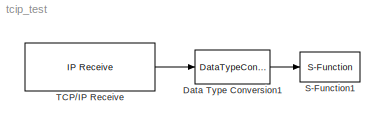
MODEL tcip_test
KIND model
BLOCK [DataTypeConversion] Data Type Conversion1
  OutDataType = fixdt(1, 16)
  OutDataTypeMode = uint32
  OutDataTypeStr = uint32
  OutScaling = 2^0
  RndMeth = Floor
  SaturateOnIntegerOverflow = off
BLOCK [S-Function] S-Function1
  EnableBusSupport = off
  FunctionName = printOut
  Ports = [1]
BLOCK [Reference] TCP//IP Receive  REF=instrumentlib/TCP//IP Receive
  ByteOrder = BigEndian
  DataSize = [1 1]
  DataType = uint8
  DialogController = instrumentcreatedialog
  DialogControllerArgs = DataTag0
  EnableBlockingMode = on
  Host = 192.168.7.1
  Port = 50000
  Ports = [0, 1]
  SampleTime = 0.1
  SourceBlock = instrumentlib/TCP//IP Receive
  SourceType = TCP/IP Receive
  Timeout = 10
LINE Data Type Conversion1:1 -> S-Function1:1
LINE TCP//IP Receive:1 -> Data Type Conversion1:1
